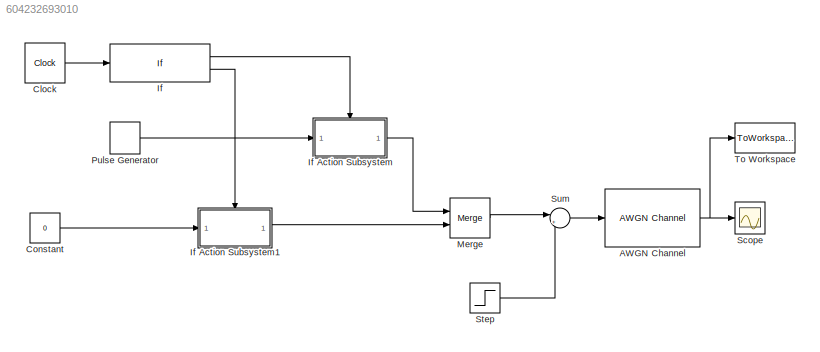
MODEL slx_604232693010
KIND model
CONFIG AbsTol = auto
CONFIG EnableMultiTasking = off
CONFIG FixedStep = auto
CONFIG MaxStep = auto
CONFIG MinStep = auto
CONFIG RelTol = 1e-3
CONFIG SampleTimeConstraint = Unconstrained
CONFIG Solver = FixedStepAuto
CONFIG SolverName = FixedStepAuto
CONFIG StartTime = 0.0
CONFIG StopTime = 49.95
BLOCK [Reference] AWGN Channel  REF=commchan3/AWGN
Channel
  Ports = [1, 1]
  SourceBlock = commchan3/AWGN\nChannel
  SourceProductBaseCode = CM
  SourceProductName = Communications System Toolbox
  SourceType = AWGN Channel
  UserDataPersistent = on
BLOCK [Clock] Clock
  DisplayTime = on
BLOCK [Constant] Constant
  Value = 0
BLOCK [If] If
  Ports = [1, 2]
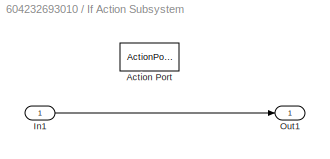
BLOCK [SubSystem] If Action Subsystem
  Ports = [1, 1, 0, 0, 0, 0, 0, 1]
  RequestExecContextInheritance = off
  TreatAsAtomicUnit = on
  Variant = off
BLOCK [ActionPort] If Action Subsystem/Action Port
  ActionType = then
BLOCK [Inport] If Action Subsystem/In1
  IconDisplay = Port number
BLOCK [Outport] If Action Subsystem/Out1
  IconDisplay = Port number
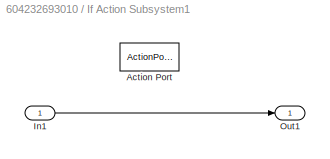
BLOCK [SubSystem] If Action Subsystem1
  Ports = [1, 1, 0, 0, 0, 0, 0, 1]
  RequestExecContextInheritance = off
  TreatAsAtomicUnit = on
  Variant = off
BLOCK [ActionPort] If Action Subsystem1/Action Port
  ActionType = else
BLOCK [Inport] If Action Subsystem1/In1
  IconDisplay = Port number
BLOCK [Outport] If Action Subsystem1/Out1
  IconDisplay = Port number
BLOCK [Merge] Merge
  Ports = [2, 1]
BLOCK [DiscretePulseGenerator] Pulse Generator
  Amplitude = amplitude
  Period = 10000
  PhaseDelay = delay
  Ports = [0, 1]
  PulseWidth = widthp
  SampleTime = 0.05
BLOCK [Scope] Scope
  NumInputPorts = 1
  Ports = [1]
  ScopeSpecificationString = Simulink.scopes.TimeScopeBlockCfg('CurrentConfiguration', extmgr.ConfigurationSet(extmgr.Configuration('Core','General UI',true),extmgr.Configuration('Core','Source UI',true),extmgr.Configuration('Sources','WiredSimulink',true),extmgr.Configuration('Visuals','Time Domain',true,'SerializedDisplays',{struct('MinYLimReal','-0.1844','MaxYLimReal','1.15015','YLabelReal','','MinYLimMag','0.00000','MaxYL...<+1395ch>
BLOCK [Step] Step
  SampleTime = 0.05
  Time = 0
BLOCK [Sum] Sum
  IconShape = round
  InputSameDT = off
  Inputs = |++
  OutDataTypeStr = Inherit: Inherit via internal rule
  Ports = [2, 1]
  SaturateOnIntegerOverflow = off
BLOCK [ToWorkspace] To Workspace
  FixptAsFi = on
  MaxDataPoints = inf
  Ports = [1]
  SampleTime = -1
  Save2DSignal = 2-D array (concatenate along first dimension)
  VariableName = yc3
NET AWGN Channel:1 -> Scope:1, To Workspace:1
LINE Clock:1 -> If:1
LINE Constant:1 -> If Action Subsystem1:1
LINE If Action Subsystem/In1:1 -> If Action Subsystem/Out1:1
LINE If Action Subsystem1/In1:1 -> If Action Subsystem1/Out1:1
LINE If Action Subsystem1:1 -> Merge:2
LINE If Action Subsystem:1 -> Merge:1
LINE If:1 -> If Action Subsystem:ifaction
LINE If:2 -> If Action Subsystem1:ifaction
LINE Merge:1 -> Sum:1
LINE Pulse Generator:1 -> If Action Subsystem:1
LINE Step:1 -> Sum:2
LINE Sum:1 -> AWGN Channel:1
note: NET lines group one-source signal fan-out (src -> all destinations, sorted); 1:1 wires keep LINE
